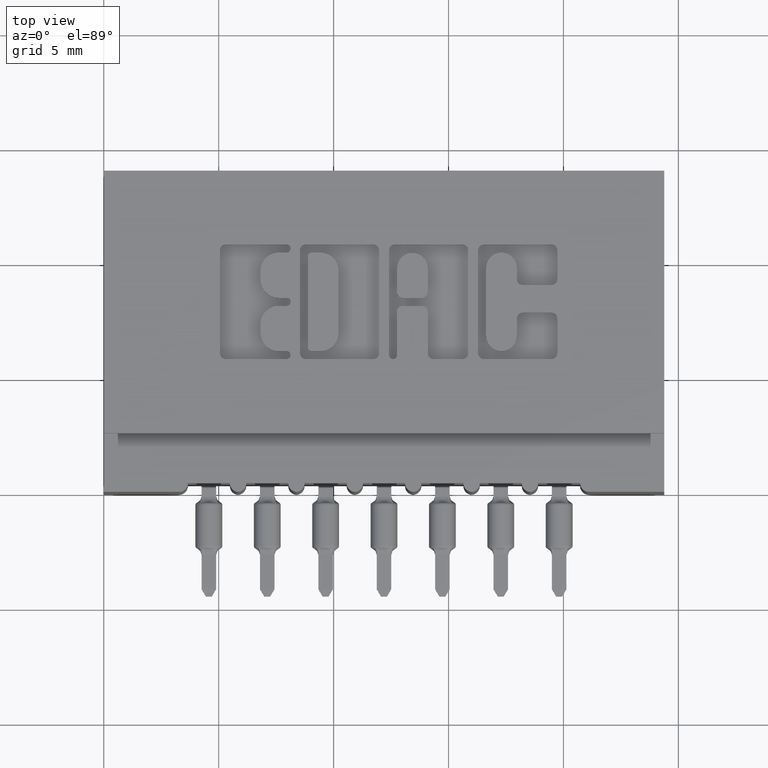
[diagram: clean part render]
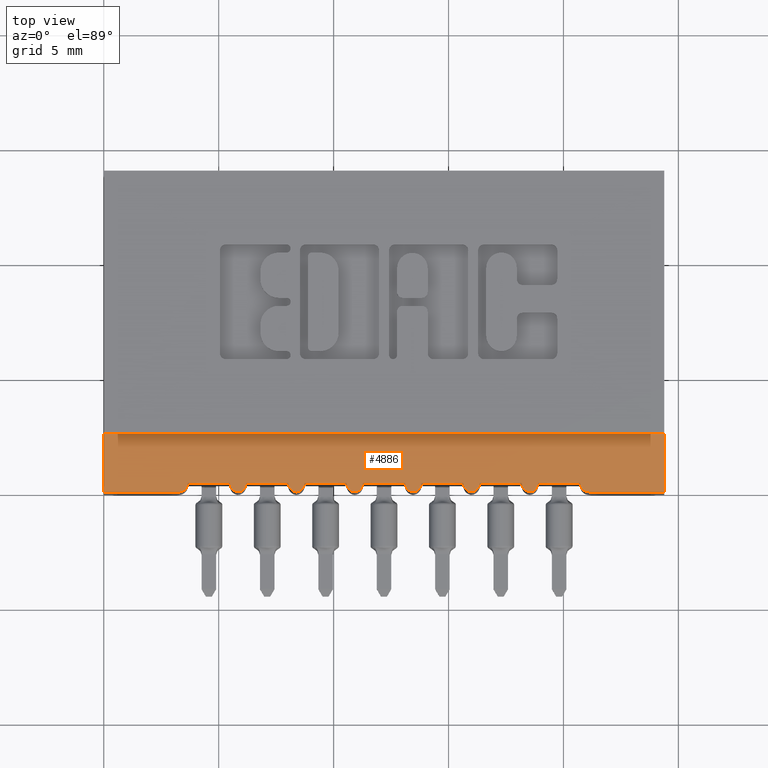
[diagram: same view with one face highlighted and labeled with its STEP entity id]
A machine part, top view. The second image highlights one B-rep face of the part: STEP entity #4886.
In plain terms, the highlighted planar face has unit normal (0, 0, -1).
Its self-contained STEP definition (entity closure, byte-faithful):
#69 = DIRECTION ( 'NONE',  ( -0.0000000000000000000, 0.0000000000000000000, 1.000000000000000000 ) ) ;
#104 = CARTESIAN_POINT ( 'NONE',  ( 0.4309999999999997200, 0.01499999999999991600, -0.02500000000000000500 ) ) ;
#204 = EDGE_CURVE ( 'NONE', #6173, #10365, #8110, .T. ) ;
#259 = CIRCLE ( 'NONE', #8145, 0.01499999999999997700 ) ;
#352 = EDGE_CURVE ( 'NONE', #9682, #3392, #9486, .T. ) ;
#369 = DIRECTION ( 'NONE',  ( -0.0000000000000000000, -1.000000000000000000, -0.0000000000000000000 ) ) ;
#423 = CARTESIAN_POINT ( 'NONE',  ( 0.1589999999999997000, 0.01499999999999999400, -0.02499999999999999400 ) ) ;
#493 = LINE ( 'NONE', #15642, #7235 ) ;
#516 = DIRECTION ( 'NONE',  ( 1.000000000000000000, 0.0000000000000000000, 0.0000000000000000000 ) ) ;
#551 = EDGE_CURVE ( 'NONE', #12495, #10110, #2934, .T. ) ;
#648 = DIRECTION ( 'NONE',  ( -0.0000000000000000000, 0.0000000000000000000, 1.000000000000000000 ) ) ;
#787 = DIRECTION ( 'NONE',  ( 1.000000000000000000, 0.0000000000000000000, 0.0000000000000000000 ) ) ;
#792 = VERTEX_POINT ( 'NONE', #10384 ) ;
#817 = CARTESIAN_POINT ( 'NONE',  ( 0.5439999999999997100, 0.01499999999999997500, -0.02500000000000000500 ) ) ;
#868 = CARTESIAN_POINT ( 'NONE',  ( 0.7159999999999996400, 0.01499999999999993200, -0.02500000000000000500 ) ) ;
#927 = CARTESIAN_POINT ( 'NONE',  ( 0.4159999999999997600, 0.01499999999999993200, -0.02500000000000000500 ) ) ;
#938 = DIRECTION ( 'NONE',  ( -1.000000000000000000, -0.0000000000000000000, -0.0000000000000000000 ) ) ;
#941 = ORIENTED_EDGE ( 'NONE', *, *, #2722, .F. ) ;
#980 = AXIS2_PLACEMENT_3D ( 'NONE', #15888, #8345, #787 ) ;
#1020 = CARTESIAN_POINT ( 'NONE',  ( 0.6289999999999997800, 0.01499999999999997700, -0.02500000000000000500 ) ) ;
#1067 = PLANE ( 'NONE',  #15607 ) ;
#1115 = AXIS2_PLACEMENT_3D ( 'NONE', #104, #8942, #1366 ) ;
#1198 = CARTESIAN_POINT ( 'NONE',  ( 0.4289999999999997100, 0.01499999999999997700, -0.02500000000000000500 ) ) ;
#1214 = CARTESIAN_POINT ( 'NONE',  ( 0.6299999999999993400, 3.337045290419381800E-005, -0.02500000000000000500 ) ) ;
#1242 = VECTOR ( 'NONE', #8525, 39.37007874015748100 ) ;
#1262 = CARTESIAN_POINT ( 'NONE',  ( 0.7299999999999992100, 3.337045290420235600E-005, -0.02500000000000000500 ) ) ;
#1341 = ORIENTED_EDGE ( 'NONE', *, *, #4157, .T. ) ;
#1366 = DIRECTION ( 'NONE',  ( 1.000000000000000000, 0.0000000000000000000, 0.0000000000000000000 ) ) ;
#1501 = CIRCLE ( 'NONE', #10345, 0.01499999999999997700 ) ;
#1552 = CARTESIAN_POINT ( 'NONE',  ( 0.0000000000000000000, 0.0000000000000000000, -0.02500000000000000500 ) ) ;
#1663 = VERTEX_POINT ( 'NONE', #13452 ) ;
#1685 = CIRCLE ( 'NONE', #15654, 0.01499999999999997700 ) ;
#1697 = DIRECTION ( 'NONE',  ( 1.000000000000000000, -0.0000000000000000000, -2.307304048702925100E-016 ) ) ;
#1763 = AXIS2_PLACEMENT_3D ( 'NONE', #1020, #9868, #2297 ) ;
#1781 = ORIENTED_EDGE ( 'NONE', *, *, #3066, .T. ) ;
#1835 = CARTESIAN_POINT ( 'NONE',  ( 0.2299999999999992300, 3.337045290419808700E-005, -0.02500000000000000500 ) ) ;
#1928 = VECTOR ( 'NONE', #3060, 39.37007874015748100 ) ;
#2022 = DIRECTION ( 'NONE',  ( 0.0000000000000000000, -0.0000000000000000000, -1.000000000000000000 ) ) ;
#2074 = CARTESIAN_POINT ( 'NONE',  ( 0.1289999999999997000, 0.0000000000000000000, -0.02500000000000000500 ) ) ;
#2297 = DIRECTION ( 'NONE',  ( 1.000000000000000000, 0.0000000000000000000, 0.0000000000000000000 ) ) ;
#2350 = AXIS2_PLACEMENT_3D ( 'NONE', #5963, #14776, #7250 ) ;
#2427 = EDGE_CURVE ( 'NONE', #11588, #8898, #6461, .T. ) ;
#2456 = DIRECTION ( 'NONE',  ( 1.000000000000000000, 0.0000000000000000000, 0.0000000000000000000 ) ) ;
#2484 = VERTEX_POINT ( 'NONE', #16277 ) ;
#2684 = CIRCLE ( 'NONE', #14392, 0.01499999999999997700 ) ;
#2722 = EDGE_CURVE ( 'NONE', #15172, #4351, #8027, .T. ) ;
#2790 = DIRECTION ( 'NONE',  ( -0.0000000000000000000, -1.000000000000000000, -0.0000000000000000000 ) ) ;
#2934 = CIRCLE ( 'NONE', #1115, 0.01499999999999997700 ) ;
#3060 = DIRECTION ( 'NONE',  ( 1.000000000000000000, -0.0000000000000000000, -2.307304048702925100E-016 ) ) ;
#3066 = EDGE_CURVE ( 'NONE', #9019, #792, #12141, .T. ) ;
#3203 = CARTESIAN_POINT ( 'NONE',  ( 0.6309999999999996700, 0.01499999999999991600, -0.02500000000000000500 ) ) ;
#3392 = VERTEX_POINT ( 'NONE', #868 ) ;
#3447 = VERTEX_POINT ( 'NONE', #16016 ) ;
#3506 = LINE ( 'NONE', #423, #13196 ) ;
#3602 = DIRECTION ( 'NONE',  ( -1.000000000000000000, 0.0000000000000000000, -0.0000000000000000000 ) ) ;
#3646 = CIRCLE ( 'NONE', #8292, 0.01499999999999997700 ) ;
#3667 = FACE_OUTER_BOUND ( 'NONE', #15604, .T. ) ;
#3819 = CARTESIAN_POINT ( 'NONE',  ( 0.9599999999999999600, 0.1000000000000000100, -0.02500000000000000500 ) ) ;
#3905 = ORIENTED_EDGE ( 'NONE', *, *, #7889, .T. ) ;
#4015 = DIRECTION ( 'NONE',  ( 1.000000000000000000, -0.0000000000000000000, -2.307304048702925100E-016 ) ) ;
#4016 = EDGE_CURVE ( 'NONE', #10772, #10110, #4618, .T. ) ;
#4157 = EDGE_CURVE ( 'NONE', #14763, #13769, #1501, .T. ) ;
#4201 = DIRECTION ( 'NONE',  ( -0.0000000000000000000, 0.0000000000000000000, 1.000000000000000000 ) ) ;
#4231 = EDGE_CURVE ( 'NONE', #4233, #3447, #7432, .T. ) ;
#4233 = VERTEX_POINT ( 'NONE', #14603 ) ;
#4304 = DIRECTION ( 'NONE',  ( 1.000000000000000000, -0.0000000000000000000, -2.307304048702925100E-016 ) ) ;
#4351 = VERTEX_POINT ( 'NONE', #14940 ) ;
#4368 = DIRECTION ( 'NONE',  ( 1.000000000000000000, -0.0000000000000000000, -2.307304048702925100E-016 ) ) ;
#4477 = ORIENTED_EDGE ( 'NONE', *, *, #8579, .T. ) ;
#4504 = DIRECTION ( 'NONE',  ( 1.000000000000000000, -8.537024980200835600E-016, 0.0000000000000000000 ) ) ;
#4566 = ORIENTED_EDGE ( 'NONE', *, *, #352, .F. ) ;
#4606 = ORIENTED_EDGE ( 'NONE', *, *, #7418, .T. ) ;
#4618 = LINE ( 'NONE', #11007, #1242 ) ;
#4667 = VECTOR ( 'NONE', #369, 39.37007874015748100 ) ;
#4839 = CIRCLE ( 'NONE', #6211, 0.01499999999999997700 ) ;
#4886 = ADVANCED_FACE ( 'NONE', ( #3667 ), #1067, .F. ) ;
#5131 = CARTESIAN_POINT ( 'NONE',  ( 0.0000000000000000000, 0.1000000000000000100, -0.02500000000000000500 ) ) ;
#5526 = CARTESIAN_POINT ( 'NONE',  ( 0.8159999999999997300, 0.01499999999999993200, -0.02500000000000000500 ) ) ;
#5576 = CARTESIAN_POINT ( 'NONE',  ( 0.2589999999999996700, 0.01499999999999999400, -0.02499999999999999400 ) ) ;
#5601 = CARTESIAN_POINT ( 'NONE',  ( 0.3299999999999992400, 3.337045290420235600E-005, -0.02500000000000000500 ) ) ;
#5644 = ORIENTED_EDGE ( 'NONE', *, *, #6810, .F. ) ;
#5652 = CIRCLE ( 'NONE', #2350, 0.01499999999999997700 ) ;
#5653 = VECTOR ( 'NONE', #4015, 39.37007874015748100 ) ;
#5703 = ORIENTED_EDGE ( 'NONE', *, *, #14436, .T. ) ;
#5958 = CARTESIAN_POINT ( 'NONE',  ( 0.5289999999999996900, 0.01499999999999997700, -0.02500000000000000500 ) ) ;
#5963 = CARTESIAN_POINT ( 'NONE',  ( 0.7289999999999996500, 0.01499999999999997700, -0.02500000000000000500 ) ) ;
#5979 = ORIENTED_EDGE ( 'NONE', *, *, #8074, .F. ) ;
#6054 = VERTEX_POINT ( 'NONE', #7878 ) ;
#6173 = VERTEX_POINT ( 'NONE', #5601 ) ;
#6195 = VERTEX_POINT ( 'NONE', #1835 ) ;
#6211 = AXIS2_PLACEMENT_3D ( 'NONE', #6901, #15699, #8170 ) ;
#6255 = EDGE_CURVE ( 'NONE', #11588, #16060, #259, .T. ) ;
#6275 = VERTEX_POINT ( 'NONE', #14574 ) ;
#6322 = CARTESIAN_POINT ( 'NONE',  ( 0.9599999999999999600, 0.1000000000000000100, -0.02500000000000000500 ) ) ;
#6380 = ORIENTED_EDGE ( 'NONE', *, *, #6255, .F. ) ;
#6461 = CIRCLE ( 'NONE', #1763, 0.01499999999999997700 ) ;
#6562 = CARTESIAN_POINT ( 'NONE',  ( 0.5589999999999997200, 0.01499999999999999400, -0.02499999999999999400 ) ) ;
#6787 = ORIENTED_EDGE ( 'NONE', *, *, #14248, .T. ) ;
#6810 = EDGE_CURVE ( 'NONE', #4351, #6054, #13853, .T. ) ;
#6864 = AXIS2_PLACEMENT_3D ( 'NONE', #5958, #14773, #7243 ) ;
#6901 = CARTESIAN_POINT ( 'NONE',  ( 0.2309999999999996800, 0.01499999999999991600, -0.02500000000000000500 ) ) ;
#6963 = VERTEX_POINT ( 'NONE', #817 ) ;
#7186 = CARTESIAN_POINT ( 'NONE',  ( 0.7309999999999996500, 0.01499999999999991600, -0.02500000000000000500 ) ) ;
#7235 = VECTOR ( 'NONE', #4368, 39.37007874015748100 ) ;
#7243 = DIRECTION ( 'NONE',  ( 1.000000000000000000, 0.0000000000000000000, 0.0000000000000000000 ) ) ;
#7250 = DIRECTION ( 'NONE',  ( 1.000000000000000000, 0.0000000000000000000, 0.0000000000000000000 ) ) ;
#7345 = CARTESIAN_POINT ( 'NONE',  ( 0.6439999999999997900, 0.01499999999999997500, -0.02500000000000000500 ) ) ;
#7361 = ORIENTED_EDGE ( 'NONE', *, *, #4016, .T. ) ;
#7418 = EDGE_CURVE ( 'NONE', #13769, #2484, #3506, .T. ) ;
#7432 = CIRCLE ( 'NONE', #12026, 0.01499999999999997700 ) ;
#7444 = EDGE_CURVE ( 'NONE', #6275, #9139, #12793, .T. ) ;
#7459 = EDGE_CURVE ( 'NONE', #10603, #10365, #9047, .T. ) ;
#7518 = ORIENTED_EDGE ( 'NONE', *, *, #2427, .T. ) ;
#7594 = DIRECTION ( 'NONE',  ( -1.000000000000000000, -0.0000000000000000000, -0.0000000000000000000 ) ) ;
#7653 = CARTESIAN_POINT ( 'NONE',  ( 0.2289999999999997000, 0.01499999999999997700, -0.02500000000000000500 ) ) ;
#7696 = CARTESIAN_POINT ( 'NONE',  ( 0.3439999999999996400, 0.01499999999999997500, -0.02500000000000000500 ) ) ;
#7878 = CARTESIAN_POINT ( 'NONE',  ( 0.8309999999999997400, 0.0000000000000000000, -0.02500000000000000500 ) ) ;
#7889 = EDGE_CURVE ( 'NONE', #6195, #10603, #2684, .T. ) ;
#8027 = LINE ( 'NONE', #12955, #4667 ) ;
#8074 = EDGE_CURVE ( 'NONE', #6054, #9139, #12564, .T. ) ;
#8087 = DIRECTION ( 'NONE',  ( 0.0000000000000000000, -0.0000000000000000000, -1.000000000000000000 ) ) ;
#8110 = CIRCLE ( 'NONE', #980, 0.01499999999999997700 ) ;
#8145 = AXIS2_PLACEMENT_3D ( 'NONE', #3203, #12032, #4504 ) ;
#8170 = DIRECTION ( 'NONE',  ( 1.000000000000000000, 0.0000000000000000000, 0.0000000000000000000 ) ) ;
#8180 = AXIS2_PLACEMENT_3D ( 'NONE', #15599, #8087, #516 ) ;
#8227 = CARTESIAN_POINT ( 'NONE',  ( 0.1289999999999997000, 0.01499999999999997700, -0.02500000000000000500 ) ) ;
#8292 = AXIS2_PLACEMENT_3D ( 'NONE', #1198, #10044, #2456 ) ;
#8345 = DIRECTION ( 'NONE',  ( 0.0000000000000000000, -0.0000000000000000000, -1.000000000000000000 ) ) ;
#8398 = ORIENTED_EDGE ( 'NONE', *, *, #11097, .T. ) ;
#8457 = DIRECTION ( 'NONE',  ( 1.000000000000000000, 0.0000000000000000000, 0.0000000000000000000 ) ) ;
#8491 = CARTESIAN_POINT ( 'NONE',  ( 0.6159999999999996600, 0.01499999999999993200, -0.02500000000000000500 ) ) ;
#8525 = DIRECTION ( 'NONE',  ( 1.000000000000000000, -0.0000000000000000000, -2.307304048702925100E-016 ) ) ;
#8579 = EDGE_CURVE ( 'NONE', #6173, #10772, #1685, .T. ) ;
#8679 = EDGE_CURVE ( 'NONE', #8898, #3392, #493, .T. ) ;
#8787 = EDGE_CURVE ( 'NONE', #9682, #6275, #5652, .T. ) ;
#8800 = CIRCLE ( 'NONE', #6864, 0.01499999999999997700 ) ;
#8898 = VERTEX_POINT ( 'NONE', #7345 ) ;
#8902 = EDGE_CURVE ( 'NONE', #14763, #792, #11149, .T. ) ;
#8915 = DIRECTION ( 'NONE',  ( 1.000000000000000000, 0.0000000000000000000, 0.0000000000000000000 ) ) ;
#8919 = EDGE_CURVE ( 'NONE', #12495, #1663, #3646, .T. ) ;
#8942 = DIRECTION ( 'NONE',  ( 0.0000000000000000000, -0.0000000000000000000, -1.000000000000000000 ) ) ;
#9019 = VERTEX_POINT ( 'NONE', #5131 ) ;
#9047 = LINE ( 'NONE', #5576, #1928 ) ;
#9050 = ORIENTED_EDGE ( 'NONE', *, *, #8679, .T. ) ;
#9104 = CARTESIAN_POINT ( 'NONE',  ( 0.4589999999999996900, 0.01499999999999999400, -0.02499999999999999400 ) ) ;
#9106 = ORIENTED_EDGE ( 'NONE', *, *, #12512, .F. ) ;
#9139 = VERTEX_POINT ( 'NONE', #5526 ) ;
#9408 = ORIENTED_EDGE ( 'NONE', *, *, #7444, .T. ) ;
#9486 = CIRCLE ( 'NONE', #10288, 0.01499999999999997700 ) ;
#9488 = DIRECTION ( 'NONE',  ( 1.000000000000000000, 0.0000000000000000000, 0.0000000000000000000 ) ) ;
#9610 = CARTESIAN_POINT ( 'NONE',  ( 0.5309999999999996900, 0.01499999999999991600, -0.02500000000000000500 ) ) ;
#9682 = VERTEX_POINT ( 'NONE', #1262 ) ;
#9830 = LINE ( 'NONE', #6322, #12381 ) ;
#9868 = DIRECTION ( 'NONE',  ( -0.0000000000000000000, 0.0000000000000000000, 1.000000000000000000 ) ) ;
#9905 = CARTESIAN_POINT ( 'NONE',  ( 0.9599999999999999600, 0.0000000000000000000, -0.02500000000000000500 ) ) ;
#10044 = DIRECTION ( 'NONE',  ( -0.0000000000000000000, 0.0000000000000000000, 1.000000000000000000 ) ) ;
#10110 = VERTEX_POINT ( 'NONE', #927 ) ;
#10288 = AXIS2_PLACEMENT_3D ( 'NONE', #7186, #15977, #8457 ) ;
#10345 = AXIS2_PLACEMENT_3D ( 'NONE', #8227, #648, #9488 ) ;
#10365 = VERTEX_POINT ( 'NONE', #15521 ) ;
#10384 = CARTESIAN_POINT ( 'NONE',  ( 0.0000000000000000000, 0.0000000000000000000, -0.02500000000000000500 ) ) ;
#10500 = VECTOR ( 'NONE', #938, 39.37007874015748100 ) ;
#10603 = VERTEX_POINT ( 'NONE', #12389 ) ;
#10666 = ORIENTED_EDGE ( 'NONE', *, *, #8787, .T. ) ;
#10750 = VECTOR ( 'NONE', #13728, 39.37007874015748100 ) ;
#10772 = VERTEX_POINT ( 'NONE', #7696 ) ;
#10845 = DIRECTION ( 'NONE',  ( 1.000000000000000000, 0.0000000000000000000, 0.0000000000000000000 ) ) ;
#10990 = CARTESIAN_POINT ( 'NONE',  ( 0.1439999999999996600, 0.01499999999999997500, -0.02500000000000000500 ) ) ;
#11007 = CARTESIAN_POINT ( 'NONE',  ( 0.3589999999999997100, 0.01499999999999999400, -0.02499999999999999400 ) ) ;
#11036 = CARTESIAN_POINT ( 'NONE',  ( 0.9599999999999999600, 0.0000000000000000000, -0.02500000000000000500 ) ) ;
#11097 = EDGE_CURVE ( 'NONE', #15172, #9019, #9830, .T. ) ;
#11149 = LINE ( 'NONE', #12461, #10750 ) ;
#11174 = DIRECTION ( 'NONE',  ( 0.0000000000000000000, 0.0000000000000000000, -1.000000000000000000 ) ) ;
#11549 = VECTOR ( 'NONE', #14207, 39.37007874015748100 ) ;
#11588 = VERTEX_POINT ( 'NONE', #1214 ) ;
#11710 = ORIENTED_EDGE ( 'NONE', *, *, #8902, .F. ) ;
#11761 = CARTESIAN_POINT ( 'NONE',  ( 0.3289999999999996800, 0.01499999999999997700, -0.02500000000000000500 ) ) ;
#11835 = CARTESIAN_POINT ( 'NONE',  ( 0.7589999999999997900, 0.01499999999999999400, -0.02499999999999999400 ) ) ;
#12026 = AXIS2_PLACEMENT_3D ( 'NONE', #9610, #2022, #10845 ) ;
#12032 = DIRECTION ( 'NONE',  ( 0.0000000000000000000, -0.0000000000000000000, -1.000000000000000000 ) ) ;
#12141 = LINE ( 'NONE', #1552, #15088 ) ;
#12381 = VECTOR ( 'NONE', #7594, 39.37007874015748100 ) ;
#12389 = CARTESIAN_POINT ( 'NONE',  ( 0.2439999999999996600, 0.01499999999999997500, -0.02500000000000000500 ) ) ;
#12390 = ORIENTED_EDGE ( 'NONE', *, *, #8919, .T. ) ;
#12391 = VECTOR ( 'NONE', #4304, 39.37007874015748100 ) ;
#12455 = ORIENTED_EDGE ( 'NONE', *, *, #7459, .T. ) ;
#12461 = CARTESIAN_POINT ( 'NONE',  ( 0.9599999999999999600, 0.0000000000000000000, -0.02500000000000000500 ) ) ;
#12495 = VERTEX_POINT ( 'NONE', #14387 ) ;
#12512 = EDGE_CURVE ( 'NONE', #6195, #2484, #4839, .T. ) ;
#12564 = CIRCLE ( 'NONE', #8180, 0.01499999999999997700 ) ;
#12793 = LINE ( 'NONE', #11835, #12391 ) ;
#12955 = CARTESIAN_POINT ( 'NONE',  ( 0.9599999999999999600, 0.0000000000000000000, -0.02500000000000000500 ) ) ;
#13039 = DIRECTION ( 'NONE',  ( 1.000000000000000000, 0.0000000000000000000, 0.0000000000000000000 ) ) ;
#13196 = VECTOR ( 'NONE', #1697, 39.37007874015748100 ) ;
#13452 = CARTESIAN_POINT ( 'NONE',  ( 0.4439999999999996700, 0.01499999999999997500, -0.02500000000000000500 ) ) ;
#13522 = ORIENTED_EDGE ( 'NONE', *, *, #14467, .T. ) ;
#13711 = ORIENTED_EDGE ( 'NONE', *, *, #551, .F. ) ;
#13728 = DIRECTION ( 'NONE',  ( -1.000000000000000000, -0.0000000000000000000, -0.0000000000000000000 ) ) ;
#13769 = VERTEX_POINT ( 'NONE', #10990 ) ;
#13853 = LINE ( 'NONE', #11036, #10500 ) ;
#14207 = DIRECTION ( 'NONE',  ( 1.000000000000000000, -0.0000000000000000000, -2.307304048702925100E-016 ) ) ;
#14248 = EDGE_CURVE ( 'NONE', #4233, #6963, #8800, .T. ) ;
#14387 = CARTESIAN_POINT ( 'NONE',  ( 0.4299999999999992200, 3.337045290420235600E-005, -0.02500000000000000500 ) ) ;
#14392 = AXIS2_PLACEMENT_3D ( 'NONE', #7653, #69, #8915 ) ;
#14436 = EDGE_CURVE ( 'NONE', #6963, #16060, #15671, .T. ) ;
#14467 = EDGE_CURVE ( 'NONE', #1663, #3447, #15280, .T. ) ;
#14574 = CARTESIAN_POINT ( 'NONE',  ( 0.7439999999999996600, 0.01499999999999997500, -0.02500000000000000500 ) ) ;
#14603 = CARTESIAN_POINT ( 'NONE',  ( 0.5299999999999992500, 3.337045290420235600E-005, -0.02500000000000000500 ) ) ;
#14763 = VERTEX_POINT ( 'NONE', #2074 ) ;
#14773 = DIRECTION ( 'NONE',  ( -0.0000000000000000000, 0.0000000000000000000, 1.000000000000000000 ) ) ;
#14776 = DIRECTION ( 'NONE',  ( -0.0000000000000000000, 0.0000000000000000000, 1.000000000000000000 ) ) ;
#14940 = CARTESIAN_POINT ( 'NONE',  ( 0.9599999999999999600, 0.0000000000000000000, -0.02500000000000000500 ) ) ;
#15088 = VECTOR ( 'NONE', #2790, 39.37007874015748100 ) ;
#15172 = VERTEX_POINT ( 'NONE', #3819 ) ;
#15194 = ORIENTED_EDGE ( 'NONE', *, *, #204, .F. ) ;
#15280 = LINE ( 'NONE', #9104, #11549 ) ;
#15521 = CARTESIAN_POINT ( 'NONE',  ( 0.3159999999999997300, 0.01499999999999993200, -0.02500000000000000500 ) ) ;
#15599 = CARTESIAN_POINT ( 'NONE',  ( 0.8309999999999997400, 0.01499999999999991600, -0.02500000000000000500 ) ) ;
#15604 = EDGE_LOOP ( 'NONE', ( #9408, #5979, #5644, #941, #8398, #1781, #11710, #1341, #4606, #9106, #3905, #12455, #15194, #4477, #7361, #13711, #12390, #13522, #16156, #6787, #5703, #6380, #7518, #9050, #4566, #10666 ) ) ;
#15607 = AXIS2_PLACEMENT_3D ( 'NONE', #9905, #11174, #3602 ) ;
#15642 = CARTESIAN_POINT ( 'NONE',  ( 0.6589999999999997000, 0.01499999999999999400, -0.02499999999999999400 ) ) ;
#15654 = AXIS2_PLACEMENT_3D ( 'NONE', #11761, #4201, #13039 ) ;
#15671 = LINE ( 'NONE', #6562, #5653 ) ;
#15699 = DIRECTION ( 'NONE',  ( 0.0000000000000000000, -0.0000000000000000000, -1.000000000000000000 ) ) ;
#15888 = CARTESIAN_POINT ( 'NONE',  ( 0.3309999999999996800, 0.01499999999999991600, -0.02500000000000000500 ) ) ;
#15977 = DIRECTION ( 'NONE',  ( 0.0000000000000000000, -0.0000000000000000000, -1.000000000000000000 ) ) ;
#16016 = CARTESIAN_POINT ( 'NONE',  ( 0.5159999999999996800, 0.01499999999999993200, -0.02500000000000000500 ) ) ;
#16060 = VERTEX_POINT ( 'NONE', #8491 ) ;
#16156 = ORIENTED_EDGE ( 'NONE', *, *, #4231, .F. ) ;
#16277 = CARTESIAN_POINT ( 'NONE',  ( 0.2159999999999996900, 0.01499999999999993200, -0.02500000000000000500 ) ) ;